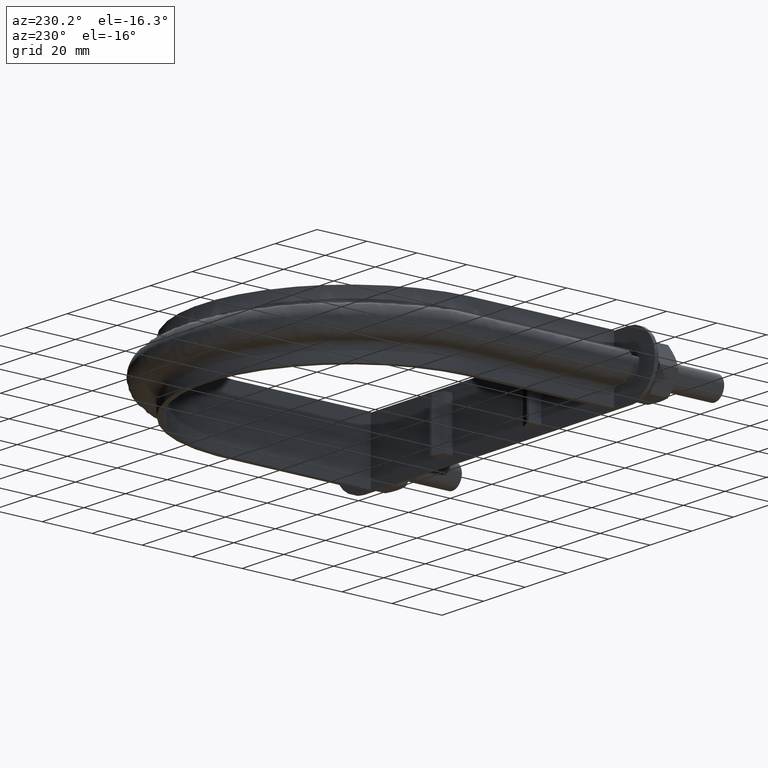
[diagram: clean part render]
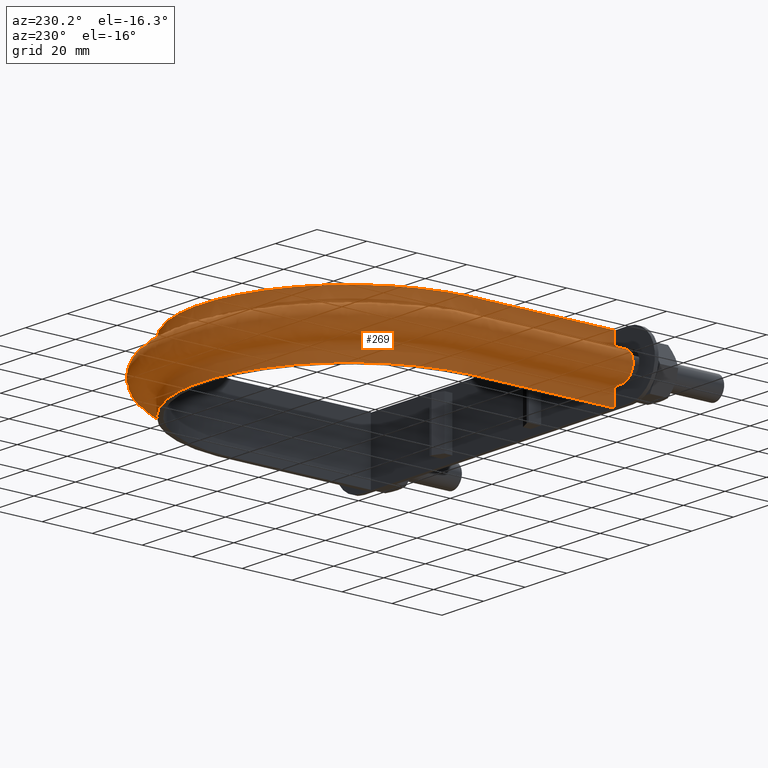
[diagram: same view with one face highlighted and labeled with its STEP entity id]
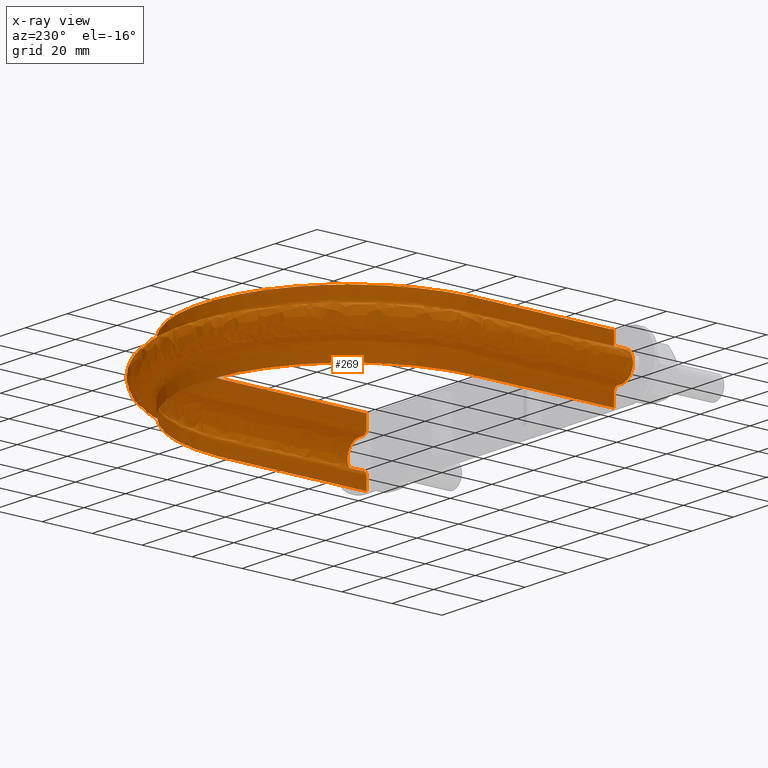
[diagram: x-ray of the same camera — body ghosted, the highlighted face saturated]
A machine part, auxiliary view. The second image highlights one B-rep face of the part: STEP entity #269.
The next image is the same camera in x-ray: the body ghosted, the highlighted face saturated — about 1% of this face is hidden behind the body in this view.
In plain terms, the highlighted face is a freeform B-spline surface patch.
Its self-contained STEP definition (entity closure, byte-faithful):
#269 = ADVANCED_FACE( '', ( #382 ), #383, .F. );
#382 = FACE_OUTER_BOUND( '', #630, .T. );
#383 = B_SPLINE_SURFACE_WITH_KNOTS( '', 3, 3, ( ( #631, #632, #633, #634, #635, #636, #637, #638, #639, #640, #641, #642, #643, #644, #645, #646 ), ( #647, #648, #649, #650, #651, #652, #653, #654, #655, #656, #657, #658, #659, #660, #661, #662 ), ( #663, #664, #665, #666, #667, #668, #669, #670, #671, #672, #673, #674, #675, #676, #677, #678 ), ( #679, #680, #681, #682, #683, #684, #685, #686, #687, #688, #689, #690, #691, #692, #693, #694 ), ( #695, #696, #697, #698, #699, #700, #701, #702, #703, #704, #705, #706, #707, #708, #709, #710 ), ( #711, #712, #713, #714, #715, #716, #717, #718, #719, #720, #721, #722, #723, #724, #725, #726 ), ( #727, #728, #729, #730, #731, #732, #733, #734, #735, #736, #737, #738, #739, #740, #741, #742 ), ( #743, #744, #745, #746, #747, #748, #749, #750, #751, #752, #753, #754, #755, #756, #757, #758 ), ( #759, #760, #761, #762, #763, #764, #765, #766, #767, #768, #769, #770, #771, #772, #773, #774 ), ( #775, #776, #777, #778, #779, #780, #781, #782, #783, #784, #785, #786, #787, #788, #789, #790 ), ( #791, #792, #793, #794, #795, #796, #797, #798, #799, #800, #801, #802, #803, #804, #805, #806 ), ( #807, #808, #809, #810, #811, #812, #813, #814, #815, #816, #817, #818, #819, #820, #821, #822 ), ( #823, #824, #825, #826, #827, #828, #829, #830, #831, #832, #833, #834, #835, #836, #837, #838 ), ( #839, #840, #841, #842, #843, #844, #845, #846, #847, #848, #849, #850, #851, #852, #853, #854 ), ( #855, #856, #857, #858, #859, #860, #861, #862, #863, #864, #865, #866, #867, #868, #869, #870 ), ( #871, #872, #873, #874, #875, #876, #877, #878, #879, #880, #881, #882, #883, #884, #885, #886 ), ( #887, #888, #889, #890, #891, #892, #893, #894, #895, #896, #897, #898, #899, #900, #901, #902 ), ( #903, #904, #905, #906, #907, #908, #909, #910, #911, #912, #913, #914, #915, #916, #917, #918 ), ( #919, #920, #921, #922, #923, #924, #925, #926, #927, #928, #929, #930, #931, #932, #933, #934 ), ( #935, #936, #937, #938, #939, #940, #941, #942, #943, #944, #945, #946, #947, #948, #949, #950 ), ( #951, #952, #953, #954, #955, #956, #957, #958, #959, #960, #961, #962, #963, #964, #965, #966 ), ( #967, #968, #969, #970, #971, #972, #973, #974, #975, #976, #977, #978, #979, #980, #981, #982 ), ( #983, #984, #985, #986, #987, #988, #989, #990, #991, #992, #993, #994, #995, #996, #997, #998 ), ( #999, #1000, #1001, #1002, #1003, #1004, #1005, #1006, #1007, #1008, #1009, #1010, #1011, #1012, #1013, #1014 ), ( #1015, #1016, #1017, #1018, #1019, #1020, #1021, #1022, #1023, #1024, #1025, #1026, #1027, #1028, #1029, #1030 ), ( #1031, #1032, #1033, #1034, #1035, #1036, #1037, #1038, #1039, #1040, #1041, #1042, #1043, #1044, #1045, #1046 ), ( #1047, #1048, #1049, #1050, #1051, #1052, #1053, #1054, #1055, #1056, #1057, #1058, #1059, #1060, #1061, #1062 ), ( #1063, #1064, #1065, #1066, #1067, #1068, #1069, #1070, #1071, #1072, #1073, #1074, #1075, #1076, #1077, #1078 ), ( #1079, #1080, #1081, #1082, #1083, #1084, #1085, #1086, #1087, #1088, #1089, #1090, #1091, #1092, #1093, #1094 ), ( #1095, #1096, #1097, #1098, #1099, #1100, #1101, #1102, #1103, #1104, #1105, #1106, #1107, #1108, #1109, #1110 ), ( #1111, #1112, #1113, #1114, #1115, #1116, #1117, #1118, #1119, #1120, #1121, #1122, #1123, #1124, #1125, #1126 ) ), .UNSPECIFIED., .F., .F., .F., ( 4, 3, 1, 1, 1, 3, 3, 1, 1, 1, 3, 3, 1, 1, 1, 3, 4 ), ( 4, 3, 1, 1, 1, 1, 1, 1, 3, 4 ), ( 0.105263157894737, 0.157894736842105, 0.210526315789474, 0.263157894736842, 0.315789473684211, 0.368421052631579, 0.421052631578947, 0.473684210526316, 0.526315789473684, 0.578947368421053, 0.631578947368421, 0.684210526315789, 0.736842105263158, 0.789473684210526, 0.842105263157895, 0.894736842105263, 0.947368421052632 ), ( 0.000000000000000, 1.00000000000000, 2.00000000000000, 3.00000000000000, 4.00000000000000, 5.00000000000000, 6.00000000000000, 7.00000000000000, 8.00000000000000, 9.00000000000000 ), .UNSPECIFIED. );
#630 = EDGE_LOOP( '', ( #1543, #1544, #1545, #1546 ) );
#631 = CARTESIAN_POINT( '', ( -59.4000000000000, 33.5100000000000, 12.5000000000000 ) );
#632 = CARTESIAN_POINT( '', ( -59.4000000000000, 53.5433333333334, 12.5000000000000 ) );
#633 = CARTESIAN_POINT( '', ( -59.4000000000000, 73.5766666666667, 12.5000000000000 ) );
#634 = CARTESIAN_POINT( '', ( -59.4000000000000, 93.6100000000000, 12.5000000000000 ) );
#635 = CARTESIAN_POINT( '', ( -59.4000000000000, 102.484817836499, 12.5000000000000 ) );
#636 = CARTESIAN_POINT( '', ( -55.3444933644878, 120.266836188810, 12.5000000000000 ) );
#637 = CARTESIAN_POINT( '', ( -38.2995777447149, 141.635011205915, 12.5000000000000 ) );
#638 = CARTESIAN_POINT( '', ( -13.6689610391051, 153.497859339137, 12.5000000000000 ) );
#639 = CARTESIAN_POINT( '', ( 13.6689610391052, 153.497859339137, 12.5000000000000 ) );
#640 = CARTESIAN_POINT( '', ( 38.2995777447150, 141.635011205915, 12.5000000000000 ) );
#641 = CARTESIAN_POINT( '', ( 55.3444933644878, 120.266836188810, 12.5000000000000 ) );
#642 = CARTESIAN_POINT( '', ( 59.4000000000000, 102.484817836499, 12.5000000000000 ) );
#643 = CARTESIAN_POINT( '', ( 59.4000000000000, 93.6100000000000, 12.5000000000000 ) );
#644 = CARTESIAN_POINT( '', ( 59.4000000000000, 73.5766666666666, 12.5000000000000 ) );
#645 = CARTESIAN_POINT( '', ( 59.4000000000000, 53.5433333333333, 12.5000000000000 ) );
#646 = CARTESIAN_POINT( '', ( 59.4000000000000, 33.5100000000000, 12.5000000000000 ) );
#647 = CARTESIAN_POINT( '', ( -59.4000000000000, 33.5100000000000, 10.8666666666667 ) );
#648 = CARTESIAN_POINT( '', ( -59.4000000000000, 53.5433333333334, 10.8666666666667 ) );
#649 = CARTESIAN_POINT( '', ( -59.4000000000000, 73.5766666666667, 10.8666666666667 ) );
#650 = CARTESIAN_POINT( '', ( -59.4000000000000, 93.6100000000000, 10.8666666666667 ) );
#651 = CARTESIAN_POINT( '', ( -59.4000000000000, 102.484817836499, 10.8666666666667 ) );
#652 = CARTESIAN_POINT( '', ( -55.3444933644878, 120.266836188810, 10.8666666666667 ) );
#653 = CARTESIAN_POINT( '', ( -38.2995777447149, 141.635011205915, 10.8666666666667 ) );
#654 = CARTESIAN_POINT( '', ( -13.6689610391051, 153.497859339137, 10.8666666666667 ) );
#655 = CARTESIAN_POINT( '', ( 13.6689610391052, 153.497859339137, 10.8666666666667 ) );
#656 = CARTESIAN_POINT( '', ( 38.2995777447150, 141.635011205915, 10.8666666666667 ) );
#657 = CARTESIAN_POINT( '', ( 55.3444933644878, 120.266836188810, 10.8666666666667 ) );
#658 = CARTESIAN_POINT( '', ( 59.4000000000000, 102.484817836499, 10.8666666666667 ) );
#659 = CARTESIAN_POINT( '', ( 59.4000000000000, 93.6100000000000, 10.8666666666667 ) );
#660 = CARTESIAN_POINT( '', ( 59.4000000000000, 73.5766666666666, 10.8666666666667 ) );
#661 = CARTESIAN_POINT( '', ( 59.4000000000000, 53.5433333333333, 10.8666666666667 ) );
#662 = CARTESIAN_POINT( '', ( 59.4000000000000, 33.5100000000000, 10.8666666666667 ) );
#663 = CARTESIAN_POINT( '', ( -59.4000000000000, 33.5100000000000, 9.23333333333334 ) );
#664 = CARTESIAN_POINT( '', ( -59.4000000000000, 53.5433333333334, 9.23333333333334 ) );
#665 = CARTESIAN_POINT( '', ( -59.4000000000000, 73.5766666666667, 9.23333333333334 ) );
#666 = CARTESIAN_POINT( '', ( -59.4000000000000, 93.6100000000000, 9.23333333333334 ) );
#667 = CARTESIAN_POINT( '', ( -59.4000000000000, 102.484817836499, 9.23333333333334 ) );
#668 = CARTESIAN_POINT( '', ( -55.3444933644878, 120.266836188810, 9.23333333333333 ) );
#669 = CARTESIAN_POINT( '', ( -38.2995777447149, 141.635011205915, 9.23333333333334 ) );
#670 = CARTESIAN_POINT( '', ( -13.6689610391051, 153.497859339138, 9.23333333333334 ) );
#671 = CARTESIAN_POINT( '', ( 13.6689610391052, 153.497859339137, 9.23333333333334 ) );
#672 = CARTESIAN_POINT( '', ( 38.2995777447150, 141.635011205915, 9.23333333333335 ) );
#673 = CARTESIAN_POINT( '', ( 55.3444933644878, 120.266836188810, 9.23333333333334 ) );
#674 = CARTESIAN_POINT( '', ( 59.4000000000000, 102.484817836499, 9.23333333333334 ) );
#675 = CARTESIAN_POINT( '', ( 59.4000000000000, 93.6100000000000, 9.23333333333334 ) );
#676 = CARTESIAN_POINT( '', ( 59.4000000000000, 73.5766666666666, 9.23333333333334 ) );
#677 = CARTESIAN_POINT( '', ( 59.4000000000000, 53.5433333333333, 9.23333333333334 ) );
#678 = CARTESIAN_POINT( '', ( 59.4000000000000, 33.5100000000000, 9.23333333333334 ) );
#679 = CARTESIAN_POINT( '', ( -59.4000000000000, 33.5100000000000, 7.60000000000001 ) );
#680 = CARTESIAN_POINT( '', ( -59.4000000000000, 53.5433333333334, 7.60000000000001 ) );
#681 = CARTESIAN_POINT( '', ( -59.4000000000000, 73.5766666666667, 7.60000000000001 ) );
#682 = CARTESIAN_POINT( '', ( -59.4000000000000, 93.6100000000000, 7.60000000000001 ) );
#683 = CARTESIAN_POINT( '', ( -59.4000000000000, 102.484817836499, 7.60000000000001 ) );
#684 = CARTESIAN_POINT( '', ( -55.3444933644878, 120.266836188810, 7.60000000000000 ) );
#685 = CARTESIAN_POINT( '', ( -38.2995777447149, 141.635011205915, 7.60000000000001 ) );
#686 = CARTESIAN_POINT( '', ( -13.6689610391051, 153.497859339137, 7.60000000000001 ) );
#687 = CARTESIAN_POINT( '', ( 13.6689610391052, 153.497859339138, 7.60000000000001 ) );
#688 = CARTESIAN_POINT( '', ( 38.2995777447150, 141.635011205915, 7.60000000000002 ) );
#689 = CARTESIAN_POINT( '', ( 55.3444933644878, 120.266836188810, 7.60000000000001 ) );
#690 = CARTESIAN_POINT( '', ( 59.4000000000000, 102.484817836499, 7.60000000000001 ) );
#691 = CARTESIAN_POINT( '', ( 59.4000000000000, 93.6100000000000, 7.60000000000001 ) );
#692 = CARTESIAN_POINT( '', ( 59.4000000000000, 73.5766666666666, 7.60000000000001 ) );
#693 = CARTESIAN_POINT( '', ( 59.4000000000000, 53.5433333333333, 7.60000000000001 ) );
#694 = CARTESIAN_POINT( '', ( 59.4000000000000, 33.5100000000000, 7.60000000000001 ) );
#695 = CARTESIAN_POINT( '', ( -59.4000000000000, 33.5100000000000, 7.33823584172335 ) );
#696 = CARTESIAN_POINT( '', ( -59.4000000000000, 53.5433333333334, 7.33823584172335 ) );
#697 = CARTESIAN_POINT( '', ( -59.4000000000000, 73.5766666666667, 7.33823584172335 ) );
#698 = CARTESIAN_POINT( '', ( -59.4000000000000, 93.6100000000000, 7.33823584172335 ) );
#699 = CARTESIAN_POINT( '', ( -59.4000000000000, 102.484817836499, 7.33823584172335 ) );
#700 = CARTESIAN_POINT( '', ( -55.3444933644878, 120.266836188810, 7.33823584172334 ) );
#701 = CARTESIAN_POINT( '', ( -38.2995777447149, 141.635011205915, 7.33823584172335 ) );
#702 = CARTESIAN_POINT( '', ( -13.6689610391051, 153.497859339138, 7.33823584172334 ) );
#703 = CARTESIAN_POINT( '', ( 13.6689610391052, 153.497859339137, 7.33823584172335 ) );
#704 = CARTESIAN_POINT( '', ( 38.2995777447150, 141.635011205915, 7.33823584172335 ) );
#705 = CARTESIAN_POINT( '', ( 55.3444933644878, 120.266836188810, 7.33823584172334 ) );
#706 = CARTESIAN_POINT( '', ( 59.4000000000000, 102.484817836499, 7.33823584172334 ) );
#707 = CARTESIAN_POINT( '', ( 59.4000000000000, 93.6100000000000, 7.33823584172334 ) );
#708 = CARTESIAN_POINT( '', ( 59.4000000000000, 73.5766666666666, 7.33823584172335 ) );
#709 = CARTESIAN_POINT( '', ( 59.4000000000000, 53.5433333333333, 7.33823584172334 ) );
#710 = CARTESIAN_POINT( '', ( 59.4000000000000, 33.5100000000000, 7.33823584172334 ) );
#711 = CARTESIAN_POINT( '', ( -59.5041362568359, 33.5100000000000, 6.81470752517002 ) );
#712 = CARTESIAN_POINT( '', ( -59.5041362568359, 53.5433333333334, 6.81470752517002 ) );
#713 = CARTESIAN_POINT( '', ( -59.5041362568359, 73.5766666666667, 6.81470752517002 ) );
#714 = CARTESIAN_POINT( '', ( -59.5041362568359, 93.6100000000000, 6.81470752517002 ) );
#715 = CARTESIAN_POINT( '', ( -59.5041362568359, 102.500663450545, 6.81470752517002 ) );
#716 = CARTESIAN_POINT( '', ( -55.4415197681150, 120.313436305670, 6.81470752517002 ) );
#717 = CARTESIAN_POINT( '', ( -38.3667220993400, 141.719240546797, 6.81470752517002 ) );
#718 = CARTESIAN_POINT( '', ( -13.6929245818231, 153.602843883112, 6.81470752517001 ) );
#719 = CARTESIAN_POINT( '', ( 13.6929245818232, 153.602843883112, 6.81470752517002 ) );
#720 = CARTESIAN_POINT( '', ( 38.3667220993401, 141.719240546797, 6.81470752517003 ) );
#721 = CARTESIAN_POINT( '', ( 55.4415197681150, 120.313436305670, 6.81470752517002 ) );
#722 = CARTESIAN_POINT( '', ( 59.5041362568359, 102.500663450545, 6.81470752517002 ) );
#723 = CARTESIAN_POINT( '', ( 59.5041362568359, 93.6100000000000, 6.81470752517002 ) );
#724 = CARTESIAN_POINT( '', ( 59.5041362568359, 73.5766666666666, 6.81470752517002 ) );
#725 = CARTESIAN_POINT( '', ( 59.5041362568359, 53.5433333333333, 6.81470752517002 ) );
#726 = CARTESIAN_POINT( '', ( 59.5041362568359, 33.5100000000000, 6.81470752517002 ) );
#727 = CARTESIAN_POINT( '', ( -59.9489687109389, 33.5100000000000, 6.14896871093889 ) );
#728 = CARTESIAN_POINT( '', ( -59.9489687109389, 53.5433333333334, 6.14896871093889 ) );
#729 = CARTESIAN_POINT( '', ( -59.9489687109389, 73.5766666666667, 6.14896871093889 ) );
#730 = CARTESIAN_POINT( '', ( -59.9489687109389, 93.6100000000000, 6.14896871093889 ) );
#731 = CARTESIAN_POINT( '', ( -59.9489687109389, 102.568350187109, 6.14896871093889 ) );
#732 = CARTESIAN_POINT( '', ( -55.8559814988290, 120.512495163498, 6.14896871093888 ) );
#733 = CARTESIAN_POINT( '', ( -38.6535385161630, 142.079037850355, 6.14896871093889 ) );
#734 = CARTESIAN_POINT( '', ( -13.7952881758309, 154.051299913300, 6.14896871093888 ) );
#735 = CARTESIAN_POINT( '', ( 13.7952881758310, 154.051299913300, 6.14896871093889 ) );
#736 = CARTESIAN_POINT( '', ( 38.6535385161631, 142.079037850355, 6.14896871093889 ) );
#737 = CARTESIAN_POINT( '', ( 55.8559814988290, 120.512495163498, 6.14896871093888 ) );
#738 = CARTESIAN_POINT( '', ( 59.9489687109389, 102.568350187109, 6.14896871093888 ) );
#739 = CARTESIAN_POINT( '', ( 59.9489687109389, 93.6100000000000, 6.14896871093888 ) );
#740 = CARTESIAN_POINT( '', ( 59.9489687109389, 73.5766666666666, 6.14896871093889 ) );
#741 = CARTESIAN_POINT( '', ( 59.9489687109389, 53.5433333333333, 6.14896871093888 ) );
#742 = CARTESIAN_POINT( '', ( 59.9489687109389, 33.5100000000000, 6.14896871093888 ) );
#743 = CARTESIAN_POINT( '', ( -60.6147075251700, 33.5100000000000, 5.70413625683592 ) );
#744 = CARTESIAN_POINT( '', ( -60.6147075251700, 53.5433333333334, 5.70413625683592 ) );
#745 = CARTESIAN_POINT( '', ( -60.6147075251700, 73.5766666666667, 5.70413625683592 ) );
#746 = CARTESIAN_POINT( '', ( -60.6147075251700, 93.6100000000000, 5.70413625683592 ) );
#747 = CARTESIAN_POINT( '', ( -60.6147075251700, 102.669650547107, 5.70413625683592 ) );
#748 = CARTESIAN_POINT( '', ( -56.4762673134198, 120.810407797233, 5.70413625683591 ) );
#749 = CARTESIAN_POINT( '', ( -39.0827896184075, 142.617512568251, 5.70413625683592 ) );
#750 = CARTESIAN_POINT( '', ( -13.9484861205101, 154.722461792381, 5.70413625683592 ) );
#751 = CARTESIAN_POINT( '', ( 13.9484861205102, 154.722461792381, 5.70413625683592 ) );
#752 = CARTESIAN_POINT( '', ( 39.0827896184075, 142.617512568251, 5.70413625683592 ) );
#753 = CARTESIAN_POINT( '', ( 56.4762673134199, 120.810407797233, 5.70413625683592 ) );
#754 = CARTESIAN_POINT( '', ( 60.6147075251700, 102.669650547107, 5.70413625683591 ) );
#755 = CARTESIAN_POINT( '', ( 60.6147075251700, 93.6100000000000, 5.70413625683591 ) );
#756 = CARTESIAN_POINT( '', ( 60.6147075251700, 73.5766666666666, 5.70413625683592 ) );
#757 = CARTESIAN_POINT( '', ( 60.6147075251700, 53.5433333333333, 5.70413625683591 ) );
#758 = CARTESIAN_POINT( '', ( 60.6147075251700, 33.5100000000000, 5.70413625683591 ) );
#759 = CARTESIAN_POINT( '', ( -61.1382358417233, 33.5100000000000, 5.60000000000001 ) );
#760 = CARTESIAN_POINT( '', ( -61.1382358417233, 53.5433333333334, 5.60000000000001 ) );
#761 = CARTESIAN_POINT( '', ( -61.1382358417233, 73.5766666666667, 5.60000000000001 ) );
#762 = CARTESIAN_POINT( '', ( -61.1382358417233, 93.6100000000000, 5.60000000000001 ) );
#763 = CARTESIAN_POINT( '', ( -61.1382358417233, 102.749311828382, 5.60000000000001 ) );
#764 = CARTESIAN_POINT( '', ( -56.9640519841540, 121.044682405060, 5.60000000000000 ) );
#765 = CARTESIAN_POINT( '', ( -39.4203470840875, 143.040962060065, 5.60000000000001 ) );
#766 = CARTESIAN_POINT( '', ( -14.0689589851875, 155.250254736369, 5.60000000000001 ) );
#767 = CARTESIAN_POINT( '', ( 14.0689589851876, 155.250254736369, 5.60000000000001 ) );
#768 = CARTESIAN_POINT( '', ( 39.4203470840876, 143.040962060065, 5.60000000000001 ) );
#769 = CARTESIAN_POINT( '', ( 56.9640519841540, 121.044682405060, 5.60000000000001 ) );
#770 = CARTESIAN_POINT( '', ( 61.1382358417234, 102.749311828382, 5.60000000000001 ) );
#771 = CARTESIAN_POINT( '', ( 61.1382358417234, 93.6100000000000, 5.60000000000001 ) );
#772 = CARTESIAN_POINT( '', ( 61.1382358417234, 73.5766666666666, 5.60000000000001 ) );
#773 = CARTESIAN_POINT( '', ( 61.1382358417234, 53.5433333333333, 5.60000000000001 ) );
#774 = CARTESIAN_POINT( '', ( 61.1382358417234, 33.5100000000000, 5.60000000000001 ) );
#775 = CARTESIAN_POINT( '', ( -61.4000000000000, 33.5100000000000, 5.60000000000001 ) );
#776 = CARTESIAN_POINT( '', ( -61.4000000000000, 53.5433333333334, 5.60000000000001 ) );
#777 = CARTESIAN_POINT( '', ( -61.4000000000000, 73.5766666666667, 5.60000000000001 ) );
#778 = CARTESIAN_POINT( '', ( -61.4000000000000, 93.6100000000000, 5.60000000000001 ) );
#779 = CARTESIAN_POINT( '', ( -61.4000000000000, 102.789142469019, 5.60000000000001 ) );
#780 = CARTESIAN_POINT( '', ( -57.2079443195210, 121.161819708974, 5.60000000000000 ) );
#781 = CARTESIAN_POINT( '', ( -39.5891258169275, 143.252686805971, 5.60000000000001 ) );
#782 = CARTESIAN_POINT( '', ( -14.1291954175262, 155.514151208362, 5.60000000000001 ) );
#783 = CARTESIAN_POINT( '', ( 14.1291954175263, 155.514151208363, 5.60000000000001 ) );
#784 = CARTESIAN_POINT( '', ( 39.5891258169276, 143.252686805971, 5.60000000000001 ) );
#785 = CARTESIAN_POINT( '', ( 57.2079443195211, 121.161819708974, 5.60000000000001 ) );
#786 = CARTESIAN_POINT( '', ( 61.4000000000000, 102.789142469019, 5.60000000000001 ) );
#787 = CARTESIAN_POINT( '', ( 61.4000000000000, 93.6100000000000, 5.60000000000001 ) );
#788 = CARTESIAN_POINT( '', ( 61.4000000000000, 73.5766666666666, 5.60000000000001 ) );
#789 = CARTESIAN_POINT( '', ( 61.4000000000000, 53.5433333333333, 5.60000000000001 ) );
#790 = CARTESIAN_POINT( '', ( 61.4000000000000, 33.5100000000000, 5.60000000000001 ) );
#791 = CARTESIAN_POINT( '', ( -61.9333333333333, 33.5100000000000, 5.60000000000000 ) );
#792 = CARTESIAN_POINT( '', ( -61.9333333333333, 53.5433333333334, 5.60000000000000 ) );
#793 = CARTESIAN_POINT( '', ( -61.9333333333333, 73.5766666666667, 5.60000000000000 ) );
#794 = CARTESIAN_POINT( '', ( -61.9333333333333, 93.6100000000000, 5.60000000000000 ) );
#795 = CARTESIAN_POINT( '', ( -61.9333333333333, 102.870295704358, 5.60000000000000 ) );
#796 = CARTESIAN_POINT( '', ( -57.7048645741966, 121.400481981018, 5.60000000000000 ) );
#797 = CARTESIAN_POINT( '', ( -39.9330053028509, 143.684066965987, 5.60000000000000 ) );
#798 = CARTESIAN_POINT( '', ( -14.2519245851051, 156.051829040156, 5.60000000000000 ) );
#799 = CARTESIAN_POINT( '', ( 14.2519245851052, 156.051829040156, 5.60000000000000 ) );
#800 = CARTESIAN_POINT( '', ( 39.9330053028510, 143.684066965987, 5.60000000000001 ) );
#801 = CARTESIAN_POINT( '', ( 57.7048645741966, 121.400481981018, 5.60000000000000 ) );
#802 = CARTESIAN_POINT( '', ( 61.9333333333334, 102.870295704358, 5.60000000000000 ) );
#803 = CARTESIAN_POINT( '', ( 61.9333333333334, 93.6100000000000, 5.60000000000000 ) );
#804 = CARTESIAN_POINT( '', ( 61.9333333333333, 73.5766666666666, 5.60000000000000 ) );
#805 = CARTESIAN_POINT( '', ( 61.9333333333333, 53.5433333333333, 5.60000000000000 ) );
#806 = CARTESIAN_POINT( '', ( 61.9333333333333, 33.5100000000000, 5.60000000000000 ) );
#807 = CARTESIAN_POINT( '', ( -62.4666666666667, 33.5100000000000, 5.60000000000000 ) );
#808 = CARTESIAN_POINT( '', ( -62.4666666666666, 53.5433333333334, 5.60000000000000 ) );
#809 = CARTESIAN_POINT( '', ( -62.4666666666666, 73.5766666666667, 5.60000000000000 ) );
#810 = CARTESIAN_POINT( '', ( -62.4666666666666, 93.6100000000000, 5.60000000000000 ) );
#811 = CARTESIAN_POINT( '', ( -62.4666666666666, 102.951448939696, 5.60000000000000 ) );
#812 = CARTESIAN_POINT( '', ( -58.2017848288721, 121.639144253061, 5.60000000000000 ) );
#813 = CARTESIAN_POINT( '', ( -40.2768847887742, 144.115447126002, 5.60000000000000 ) );
#814 = CARTESIAN_POINT( '', ( -14.3746537526841, 156.589506871949, 5.60000000000000 ) );
#815 = CARTESIAN_POINT( '', ( 14.3746537526842, 156.589506871949, 5.60000000000000 ) );
#816 = CARTESIAN_POINT( '', ( 40.2768847887743, 144.115447126002, 5.60000000000001 ) );
#817 = CARTESIAN_POINT( '', ( 58.2017848288721, 121.639144253061, 5.60000000000000 ) );
#818 = CARTESIAN_POINT( '', ( 62.4666666666667, 102.951448939696, 5.60000000000000 ) );
#819 = CARTESIAN_POINT( '', ( 62.4666666666667, 93.6100000000000, 5.60000000000000 ) );
#820 = CARTESIAN_POINT( '', ( 62.4666666666667, 73.5766666666666, 5.60000000000000 ) );
#821 = CARTESIAN_POINT( '', ( 62.4666666666667, 53.5433333333333, 5.60000000000000 ) );
#822 = CARTESIAN_POINT( '', ( 62.4666666666667, 33.5100000000000, 5.60000000000000 ) );
#823 = CARTESIAN_POINT( '', ( -63.0000000000000, 33.5100000000000, 5.60000000000000 ) );
#824 = CARTESIAN_POINT( '', ( -63.0000000000000, 53.5433333333334, 5.60000000000000 ) );
#825 = CARTESIAN_POINT( '', ( -63.0000000000000, 73.5766666666667, 5.60000000000000 ) );
#826 = CARTESIAN_POINT( '', ( -63.0000000000000, 93.6100000000000, 5.60000000000000 ) );
#827 = CARTESIAN_POINT( '', ( -63.0000000000000, 103.032602175035, 5.60000000000000 ) );
#828 = CARTESIAN_POINT( '', ( -58.6987050835476, 121.877806525105, 5.60000000000000 ) );
#829 = CARTESIAN_POINT( '', ( -40.6207642746976, 144.546827286017, 5.60000000000000 ) );
#830 = CARTESIAN_POINT( '', ( -14.4973829202630, 157.127184703742, 5.60000000000000 ) );
#831 = CARTESIAN_POINT( '', ( 14.4973829202631, 157.127184703743, 5.60000000000000 ) );
#832 = CARTESIAN_POINT( '', ( 40.6207642746977, 144.546827286017, 5.60000000000001 ) );
#833 = CARTESIAN_POINT( '', ( 58.6987050835477, 121.877806525105, 5.60000000000000 ) );
#834 = CARTESIAN_POINT( '', ( 63.0000000000000, 103.032602175035, 5.60000000000000 ) );
#835 = CARTESIAN_POINT( '', ( 63.0000000000000, 93.6100000000000, 5.60000000000000 ) );
#836 = CARTESIAN_POINT( '', ( 63.0000000000000, 73.5766666666666, 5.60000000000000 ) );
#837 = CARTESIAN_POINT( '', ( 63.0000000000000, 53.5433333333333, 5.60000000000000 ) );
#838 = CARTESIAN_POINT( '', ( 63.0000000000000, 33.5100000000000, 5.60000000000000 ) );
#839 = CARTESIAN_POINT( '', ( -64.4627416997970, 33.5100000000000, 5.60000000000001 ) );
#840 = CARTESIAN_POINT( '', ( -64.4627416997970, 53.5433333333334, 5.60000000000001 ) );
#841 = CARTESIAN_POINT( '', ( -64.4627416997969, 73.5766666666667, 5.60000000000001 ) );
#842 = CARTESIAN_POINT( '', ( -64.4627416997969, 93.6100000000000, 5.60000000000001 ) );
#843 = CARTESIAN_POINT( '', ( -64.4627416997969, 103.255176340166, 5.60000000000001 ) );
#844 = CARTESIAN_POINT( '', ( -60.0615787922744, 122.532371382892, 5.60000000000000 ) );
#845 = CARTESIAN_POINT( '', ( -41.5639021442567, 145.729948064491, 5.60000000000001 ) );
#846 = CARTESIAN_POINT( '', ( -14.8339849287613, 158.601841801781, 5.60000000000001 ) );
#847 = CARTESIAN_POINT( '', ( 14.8339849287614, 158.601841801781, 5.60000000000001 ) );
#848 = CARTESIAN_POINT( '', ( 41.5639021442568, 145.729948064491, 5.60000000000001 ) );
#849 = CARTESIAN_POINT( '', ( 60.0615787922745, 122.532371382892, 5.60000000000001 ) );
#850 = CARTESIAN_POINT( '', ( 64.4627416997970, 103.255176340166, 5.60000000000001 ) );
#851 = CARTESIAN_POINT( '', ( 64.4627416997970, 93.6100000000000, 5.60000000000001 ) );
#852 = CARTESIAN_POINT( '', ( 64.4627416997970, 73.5766666666666, 5.60000000000001 ) );
#853 = CARTESIAN_POINT( '', ( 64.4627416997970, 53.5433333333333, 5.60000000000001 ) );
#854 = CARTESIAN_POINT( '', ( 64.4627416997970, 33.5100000000000, 5.60000000000001 ) );
#855 = CARTESIAN_POINT( '', ( -67.3882250993909, 33.5100000000000, 4.38822509939086 ) );
#856 = CARTESIAN_POINT( '', ( -67.3882250993909, 53.5433333333334, 4.38822509939086 ) );
#857 = CARTESIAN_POINT( '', ( -67.3882250993908, 73.5766666666667, 4.38822509939086 ) );
#858 = CARTESIAN_POINT( '', ( -67.3882250993908, 93.6100000000000, 4.38822509939086 ) );
#859 = CARTESIAN_POINT( '', ( -67.3882250993908, 103.700324670429, 4.38822509939086 ) );
#860 = CARTESIAN_POINT( '', ( -62.7873262097280, 123.841501098467, 4.38822509939086 ) );
#861 = CARTESIAN_POINT( '', ( -43.4501778833749, 148.096189621438, 4.38822509939086 ) );
#862 = CARTESIAN_POINT( '', ( -15.5071889457579, 161.551155997858, 4.38822509939086 ) );
#863 = CARTESIAN_POINT( '', ( 15.5071889457580, 161.551155997858, 4.38822509939086 ) );
#864 = CARTESIAN_POINT( '', ( 43.4501778833750, 148.096189621438, 4.38822509939087 ) );
#865 = CARTESIAN_POINT( '', ( 62.7873262097281, 123.841501098467, 4.38822509939086 ) );
#866 = CARTESIAN_POINT( '', ( 67.3882250993909, 103.700324670429, 4.38822509939086 ) );
#867 = CARTESIAN_POINT( '', ( 67.3882250993909, 93.6100000000000, 4.38822509939086 ) );
#868 = CARTESIAN_POINT( '', ( 67.3882250993909, 73.5766666666666, 4.38822509939086 ) );
#869 = CARTESIAN_POINT( '', ( 67.3882250993909, 53.5433333333333, 4.38822509939086 ) );
#870 = CARTESIAN_POINT( '', ( 67.3882250993909, 33.5100000000000, 4.38822509939086 ) );
#871 = CARTESIAN_POINT( '', ( -69.2058874503046, 33.5100000000000, 1.38308419891421E-015 ) );
#872 = CARTESIAN_POINT( '', ( -69.2058874503046, 53.5433333333334, 1.38308419891421E-015 ) );
#873 = CARTESIAN_POINT( '', ( -69.2058874503045, 73.5766666666667, 1.38308419891421E-015 ) );
#874 = CARTESIAN_POINT( '', ( -69.2058874503045, 93.6100000000000, 1.38308419891421E-015 ) );
#875 = CARTESIAN_POINT( '', ( -69.2058874503045, 103.976904383923, 1.38308419891421E-015 ) );
#876 = CARTESIAN_POINT( '', ( -64.4808885315971, 124.654890023112, 1.38308419891421E-015 ) );
#877 = CARTESIAN_POINT( '', ( -44.6221593736520, 149.566383638545, 1.38308419891421E-015 ) );
#878 = CARTESIAN_POINT( '', ( -15.9254642968840, 163.383624907430, 1.38308419891421E-015 ) );
#879 = CARTESIAN_POINT( '', ( 15.9254642968841, 163.383624907430, 1.38308419891421E-015 ) );
#880 = CARTESIAN_POINT( '', ( 44.6221593736521, 149.566383638545, 1.38308419891421E-015 ) );
#881 = CARTESIAN_POINT( '', ( 64.4808885315971, 124.654890023112, 1.38308419891421E-015 ) );
#882 = CARTESIAN_POINT( '', ( 69.2058874503046, 103.976904383923, 1.38308419891421E-015 ) );
#883 = CARTESIAN_POINT( '', ( 69.2058874503046, 93.6100000000000, 1.38308419891421E-015 ) );
#884 = CARTESIAN_POINT( '', ( 69.2058874503046, 73.5766666666666, 1.38308419891421E-015 ) );
#885 = CARTESIAN_POINT( '', ( 69.2058874503046, 53.5433333333333, 1.38308419891421E-015 ) );
#886 = CARTESIAN_POINT( '', ( 69.2058874503046, 33.5100000000000, 1.38308419891421E-015 ) );
#887 = CARTESIAN_POINT( '', ( -67.3882250993909, 33.5100000000000, -4.38822509939086 ) );
#888 = CARTESIAN_POINT( '', ( -67.3882250993909, 53.5433333333334, -4.38822509939086 ) );
#889 = CARTESIAN_POINT( '', ( -67.3882250993908, 73.5766666666667, -4.38822509939086 ) );
#890 = CARTESIAN_POINT( '', ( -67.3882250993908, 93.6100000000000, -4.38822509939086 ) );
#891 = CARTESIAN_POINT( '', ( -67.3882250993908, 103.700324670429, -4.38822509939086 ) );
#892 = CARTESIAN_POINT( '', ( -62.7873262097280, 123.841501098467, -4.38822509939086 ) );
#893 = CARTESIAN_POINT( '', ( -43.4501778833749, 148.096189621438, -4.38822509939086 ) );
#894 = CARTESIAN_POINT( '', ( -15.5071889457579, 161.551155997858, -4.38822509939086 ) );
#895 = CARTESIAN_POINT( '', ( 15.5071889457580, 161.551155997858, -4.38822509939086 ) );
#896 = CARTESIAN_POINT( '', ( 43.4501778833750, 148.096189621438, -4.38822509939087 ) );
#897 = CARTESIAN_POINT( '', ( 62.7873262097281, 123.841501098467, -4.38822509939086 ) );
#898 = CARTESIAN_POINT( '', ( 67.3882250993909, 103.700324670429, -4.38822509939086 ) );
#899 = CARTESIAN_POINT( '', ( 67.3882250993909, 93.6100000000000, -4.38822509939086 ) );
#900 = CARTESIAN_POINT( '', ( 67.3882250993909, 73.5766666666666, -4.38822509939086 ) );
#901 = CARTESIAN_POINT( '', ( 67.3882250993909, 53.5433333333333, -4.38822509939086 ) );
#902 = CARTESIAN_POINT( '', ( 67.3882250993909, 33.5100000000000, -4.38822509939086 ) );
#903 = CARTESIAN_POINT( '', ( -64.4627416997970, 33.5100000000000, -5.60000000000001 ) );
#904 = CARTESIAN_POINT( '', ( -64.4627416997970, 53.5433333333334, -5.60000000000001 ) );
#905 = CARTESIAN_POINT( '', ( -64.4627416997969, 73.5766666666667, -5.60000000000001 ) );
#906 = CARTESIAN_POINT( '', ( -64.4627416997969, 93.6100000000000, -5.60000000000001 ) );
#907 = CARTESIAN_POINT( '', ( -64.4627416997969, 103.255176340166, -5.60000000000001 ) );
#908 = CARTESIAN_POINT( '', ( -60.0615787922744, 122.532371382892, -5.60000000000000 ) );
#909 = CARTESIAN_POINT( '', ( -41.5639021442567, 145.729948064491, -5.60000000000001 ) );
#910 = CARTESIAN_POINT( '', ( -14.8339849287613, 158.601841801781, -5.60000000000000 ) );
#911 = CARTESIAN_POINT( '', ( 14.8339849287614, 158.601841801781, -5.60000000000001 ) );
#912 = CARTESIAN_POINT( '', ( 41.5639021442568, 145.729948064491, -5.60000000000001 ) );
#913 = CARTESIAN_POINT( '', ( 60.0615787922745, 122.532371382892, -5.60000000000000 ) );
#914 = CARTESIAN_POINT( '', ( 64.4627416997970, 103.255176340166, -5.60000000000000 ) );
#915 = CARTESIAN_POINT( '', ( 64.4627416997970, 93.6100000000000, -5.60000000000000 ) );
#916 = CARTESIAN_POINT( '', ( 64.4627416997970, 73.5766666666666, -5.60000000000001 ) );
#917 = CARTESIAN_POINT( '', ( 64.4627416997970, 53.5433333333333, -5.60000000000000 ) );
#918 = CARTESIAN_POINT( '', ( 64.4627416997970, 33.5100000000000, -5.60000000000000 ) );
#919 = CARTESIAN_POINT( '', ( -63.0000000000000, 33.5100000000000, -5.60000000000001 ) );
#920 = CARTESIAN_POINT( '', ( -63.0000000000000, 53.5433333333334, -5.60000000000001 ) );
#921 = CARTESIAN_POINT( '', ( -63.0000000000000, 73.5766666666667, -5.60000000000001 ) );
#922 = CARTESIAN_POINT( '', ( -63.0000000000000, 93.6100000000000, -5.60000000000001 ) );
#923 = CARTESIAN_POINT( '', ( -63.0000000000000, 103.032602175035, -5.60000000000001 ) );
#924 = CARTESIAN_POINT( '', ( -58.6987050835476, 121.877806525105, -5.60000000000000 ) );
#925 = CARTESIAN_POINT( '', ( -40.6207642746976, 144.546827286017, -5.60000000000001 ) );
#926 = CARTESIAN_POINT( '', ( -14.4973829202630, 157.127184703742, -5.60000000000000 ) );
#927 = CARTESIAN_POINT( '', ( 14.4973829202631, 157.127184703743, -5.60000000000001 ) );
#928 = CARTESIAN_POINT( '', ( 40.6207642746977, 144.546827286017, -5.60000000000001 ) );
#929 = CARTESIAN_POINT( '', ( 58.6987050835477, 121.877806525105, -5.60000000000000 ) );
#930 = CARTESIAN_POINT( '', ( 63.0000000000000, 103.032602175035, -5.60000000000000 ) );
#931 = CARTESIAN_POINT( '', ( 63.0000000000000, 93.6100000000000, -5.60000000000000 ) );
#932 = CARTESIAN_POINT( '', ( 63.0000000000000, 73.5766666666666, -5.60000000000001 ) );
#933 = CARTESIAN_POINT( '', ( 63.0000000000000, 53.5433333333333, -5.60000000000000 ) );
#934 = CARTESIAN_POINT( '', ( 63.0000000000000, 33.5100000000000, -5.60000000000000 ) );
#935 = CARTESIAN_POINT( '', ( -62.4666666666667, 33.5100000000000, -5.60000000000000 ) );
#936 = CARTESIAN_POINT( '', ( -62.4666666666666, 53.5433333333334, -5.60000000000000 ) );
#937 = CARTESIAN_POINT( '', ( -62.4666666666666, 73.5766666666667, -5.60000000000000 ) );
#938 = CARTESIAN_POINT( '', ( -62.4666666666666, 93.6100000000000, -5.60000000000000 ) );
#939 = CARTESIAN_POINT( '', ( -62.4666666666666, 102.951448939696, -5.60000000000000 ) );
#940 = CARTESIAN_POINT( '', ( -58.2017848288721, 121.639144253061, -5.59999999999999 ) );
#941 = CARTESIAN_POINT( '', ( -40.2768847887743, 144.115447126002, -5.60000000000000 ) );
#942 = CARTESIAN_POINT( '', ( -14.3746537526841, 156.589506871949, -5.60000000000000 ) );
#943 = CARTESIAN_POINT( '', ( 14.3746537526842, 156.589506871949, -5.60000000000000 ) );
#944 = CARTESIAN_POINT( '', ( 40.2768847887743, 144.115447126002, -5.60000000000000 ) );
#945 = CARTESIAN_POINT( '', ( 58.2017848288721, 121.639144253061, -5.60000000000000 ) );
#946 = CARTESIAN_POINT( '', ( 62.4666666666667, 102.951448939696, -5.59999999999999 ) );
#947 = CARTESIAN_POINT( '', ( 62.4666666666667, 93.6100000000000, -5.59999999999999 ) );
#948 = CARTESIAN_POINT( '', ( 62.4666666666667, 73.5766666666666, -5.60000000000000 ) );
#949 = CARTESIAN_POINT( '', ( 62.4666666666667, 53.5433333333333, -5.59999999999999 ) );
#950 = CARTESIAN_POINT( '', ( 62.4666666666667, 33.5100000000000, -5.59999999999999 ) );
#951 = CARTESIAN_POINT( '', ( -61.9333333333333, 33.5100000000000, -5.60000000000000 ) );
#952 = CARTESIAN_POINT( '', ( -61.9333333333333, 53.5433333333334, -5.60000000000000 ) );
#953 = CARTESIAN_POINT( '', ( -61.9333333333333, 73.5766666666667, -5.60000000000000 ) );
#954 = CARTESIAN_POINT( '', ( -61.9333333333333, 93.6100000000000, -5.60000000000000 ) );
#955 = CARTESIAN_POINT( '', ( -61.9333333333333, 102.870295704358, -5.60000000000000 ) );
#956 = CARTESIAN_POINT( '', ( -57.7048645741966, 121.400481981018, -5.59999999999999 ) );
#957 = CARTESIAN_POINT( '', ( -39.9330053028509, 143.684066965987, -5.60000000000000 ) );
#958 = CARTESIAN_POINT( '', ( -14.2519245851051, 156.051829040156, -5.59999999999999 ) );
#959 = CARTESIAN_POINT( '', ( 14.2519245851052, 156.051829040156, -5.60000000000000 ) );
#960 = CARTESIAN_POINT( '', ( 39.9330053028510, 143.684066965987, -5.60000000000000 ) );
#961 = CARTESIAN_POINT( '', ( 57.7048645741966, 121.400481981018, -5.59999999999999 ) );
#962 = CARTESIAN_POINT( '', ( 61.9333333333333, 102.870295704358, -5.59999999999999 ) );
#963 = CARTESIAN_POINT( '', ( 61.9333333333333, 93.6100000000000, -5.59999999999999 ) );
#964 = CARTESIAN_POINT( '', ( 61.9333333333333, 73.5766666666666, -5.60000000000000 ) );
#965 = CARTESIAN_POINT( '', ( 61.9333333333333, 53.5433333333333, -5.59999999999999 ) );
#966 = CARTESIAN_POINT( '', ( 61.9333333333333, 33.5100000000000, -5.59999999999999 ) );
#967 = CARTESIAN_POINT( '', ( -61.4000000000000, 33.5100000000000, -5.60000000000000 ) );
#968 = CARTESIAN_POINT( '', ( -61.4000000000000, 53.5433333333334, -5.60000000000000 ) );
#969 = CARTESIAN_POINT( '', ( -61.4000000000000, 73.5766666666667, -5.60000000000000 ) );
#970 = CARTESIAN_POINT( '', ( -61.4000000000000, 93.6100000000000, -5.60000000000000 ) );
#971 = CARTESIAN_POINT( '', ( -61.4000000000000, 102.789142469019, -5.60000000000000 ) );
#972 = CARTESIAN_POINT( '', ( -57.2079443195210, 121.161819708974, -5.59999999999999 ) );
#973 = CARTESIAN_POINT( '', ( -39.5891258169275, 143.252686805971, -5.60000000000000 ) );
#974 = CARTESIAN_POINT( '', ( -14.1291954175262, 155.514151208362, -5.59999999999999 ) );
#975 = CARTESIAN_POINT( '', ( 14.1291954175263, 155.514151208363, -5.60000000000000 ) );
#976 = CARTESIAN_POINT( '', ( 39.5891258169276, 143.252686805971, -5.60000000000000 ) );
#977 = CARTESIAN_POINT( '', ( 57.2079443195210, 121.161819708974, -5.59999999999999 ) );
#978 = CARTESIAN_POINT( '', ( 61.4000000000000, 102.789142469019, -5.59999999999999 ) );
#979 = CARTESIAN_POINT( '', ( 61.4000000000000, 93.6100000000000, -5.59999999999999 ) );
#980 = CARTESIAN_POINT( '', ( 61.4000000000000, 73.5766666666666, -5.60000000000000 ) );
#981 = CARTESIAN_POINT( '', ( 61.4000000000000, 53.5433333333333, -5.59999999999999 ) );
#982 = CARTESIAN_POINT( '', ( 61.4000000000000, 33.5100000000000, -5.59999999999999 ) );
#983 = CARTESIAN_POINT( '', ( -61.1382358417233, 33.5100000000000, -5.60000000000000 ) );
#984 = CARTESIAN_POINT( '', ( -61.1382358417233, 53.5433333333334, -5.60000000000000 ) );
#985 = CARTESIAN_POINT( '', ( -61.1382358417233, 73.5766666666667, -5.60000000000000 ) );
#986 = CARTESIAN_POINT( '', ( -61.1382358417233, 93.6100000000000, -5.60000000000000 ) );
#987 = CARTESIAN_POINT( '', ( -61.1382358417233, 102.749311828382, -5.60000000000000 ) );
#988 = CARTESIAN_POINT( '', ( -56.9640519841540, 121.044682405060, -5.59999999999999 ) );
#989 = CARTESIAN_POINT( '', ( -39.4203470840875, 143.040962060065, -5.60000000000000 ) );
#990 = CARTESIAN_POINT( '', ( -14.0689589851875, 155.250254736369, -5.59999999999999 ) );
#991 = CARTESIAN_POINT( '', ( 14.0689589851876, 155.250254736369, -5.60000000000000 ) );
#992 = CARTESIAN_POINT( '', ( 39.4203470840876, 143.040962060065, -5.60000000000000 ) );
#993 = CARTESIAN_POINT( '', ( 56.9640519841540, 121.044682405060, -5.59999999999999 ) );
#994 = CARTESIAN_POINT( '', ( 61.1382358417233, 102.749311828382, -5.59999999999999 ) );
#995 = CARTESIAN_POINT( '', ( 61.1382358417233, 93.6100000000000, -5.59999999999999 ) );
#996 = CARTESIAN_POINT( '', ( 61.1382358417233, 73.5766666666666, -5.60000000000000 ) );
#997 = CARTESIAN_POINT( '', ( 61.1382358417233, 53.5433333333333, -5.59999999999999 ) );
#998 = CARTESIAN_POINT( '', ( 61.1382358417233, 33.5100000000000, -5.59999999999999 ) );
#999 = CARTESIAN_POINT( '', ( -60.6147075251700, 33.5100000000000, -5.70413625683591 ) );
#1000 = CARTESIAN_POINT( '', ( -60.6147075251700, 53.5433333333334, -5.70413625683591 ) );
#1001 = CARTESIAN_POINT( '', ( -60.6147075251700, 73.5766666666667, -5.70413625683591 ) );
#1002 = CARTESIAN_POINT( '', ( -60.6147075251700, 93.6100000000000, -5.70413625683591 ) );
#1003 = CARTESIAN_POINT( '', ( -60.6147075251700, 102.669650547107, -5.70413625683591 ) );
#1004 = CARTESIAN_POINT( '', ( -56.4762673134198, 120.810407797233, -5.70413625683590 ) );
#1005 = CARTESIAN_POINT( '', ( -39.0827896184075, 142.617512568251, -5.70413625683591 ) );
#1006 = CARTESIAN_POINT( '', ( -13.9484861205101, 154.722461792381, -5.70413625683590 ) );
#1007 = CARTESIAN_POINT( '', ( 13.9484861205102, 154.722461792381, -5.70413625683591 ) );
#1008 = CARTESIAN_POINT( '', ( 39.0827896184075, 142.617512568251, -5.70413625683591 ) );
#1009 = CARTESIAN_POINT( '', ( 56.4762673134199, 120.810407797233, -5.70413625683590 ) );
#1010 = CARTESIAN_POINT( '', ( 60.6147075251700, 102.669650547107, -5.70413625683590 ) );
#1011 = CARTESIAN_POINT( '', ( 60.6147075251700, 93.6100000000000, -5.70413625683590 ) );
#1012 = CARTESIAN_POINT( '', ( 60.6147075251700, 73.5766666666666, -5.70413625683591 ) );
#1013 = CARTESIAN_POINT( '', ( 60.6147075251700, 53.5433333333333, -5.70413625683590 ) );
#1014 = CARTESIAN_POINT( '', ( 60.6147075251700, 33.5100000000000, -5.70413625683590 ) );
#1015 = CARTESIAN_POINT( '', ( -59.9489687109389, 33.5100000000000, -6.14896871093887 ) );
#1016 = CARTESIAN_POINT( '', ( -59.9489687109388, 53.5433333333334, -6.14896871093887 ) );
#1017 = CARTESIAN_POINT( '', ( -59.9489687109389, 73.5766666666667, -6.14896871093887 ) );
#1018 = CARTESIAN_POINT( '', ( -59.9489687109388, 93.6100000000000, -6.14896871093887 ) );
#1019 = CARTESIAN_POINT( '', ( -59.9489687109388, 102.568350187109, -6.14896871093887 ) );
#1020 = CARTESIAN_POINT( '', ( -55.8559814988290, 120.512495163498, -6.14896871093887 ) );
#1021 = CARTESIAN_POINT( '', ( -38.6535385161630, 142.079037850355, -6.14896871093888 ) );
#1022 = CARTESIAN_POINT( '', ( -13.7952881758309, 154.051299913300, -6.14896871093887 ) );
#1023 = CARTESIAN_POINT( '', ( 13.7952881758310, 154.051299913300, -6.14896871093887 ) );
#1024 = CARTESIAN_POINT( '', ( 38.6535385161631, 142.079037850355, -6.14896871093888 ) );
#1025 = CARTESIAN_POINT( '', ( 55.8559814988290, 120.512495163498, -6.14896871093887 ) );
#1026 = CARTESIAN_POINT( '', ( 59.9489687109389, 102.568350187109, -6.14896871093887 ) );
#1027 = CARTESIAN_POINT( '', ( 59.9489687109389, 93.6100000000000, -6.14896871093887 ) );
#1028 = CARTESIAN_POINT( '', ( 59.9489687109389, 73.5766666666666, -6.14896871093887 ) );
#1029 = CARTESIAN_POINT( '', ( 59.9489687109389, 53.5433333333333, -6.14896871093887 ) );
#1030 = CARTESIAN_POINT( '', ( 59.9489687109389, 33.5100000000000, -6.14896871093887 ) );
#1031 = CARTESIAN_POINT( '', ( -59.5041362568359, 33.5100000000000, -6.81470752517001 ) );
#1032 = CARTESIAN_POINT( '', ( -59.5041362568359, 53.5433333333334, -6.81470752517001 ) );
#1033 = CARTESIAN_POINT( '', ( -59.5041362568359, 73.5766666666667, -6.81470752517001 ) );
#1034 = CARTESIAN_POINT( '', ( -59.5041362568359, 93.6100000000000, -6.81470752517001 ) );
#1035 = CARTESIAN_POINT( '', ( -59.5041362568359, 102.500663450545, -6.81470752517001 ) );
#1036 = CARTESIAN_POINT( '', ( -55.4415197681150, 120.313436305670, -6.81470752517000 ) );
#1037 = CARTESIAN_POINT( '', ( -38.3667220993400, 141.719240546797, -6.81470752517001 ) );
#1038 = CARTESIAN_POINT( '', ( -13.6929245818231, 153.602843883112, -6.81470752517001 ) );
#1039 = CARTESIAN_POINT( '', ( 13.6929245818232, 153.602843883112, -6.81470752517001 ) );
#1040 = CARTESIAN_POINT( '', ( 38.3667220993401, 141.719240546797, -6.81470752517001 ) );
#1041 = CARTESIAN_POINT( '', ( 55.4415197681150, 120.313436305670, -6.81470752517001 ) );
#1042 = CARTESIAN_POINT( '', ( 59.5041362568359, 102.500663450545, -6.81470752517001 ) );
#1043 = CARTESIAN_POINT( '', ( 59.5041362568359, 93.6100000000000, -6.81470752517001 ) );
#1044 = CARTESIAN_POINT( '', ( 59.5041362568359, 73.5766666666666, -6.81470752517001 ) );
#1045 = CARTESIAN_POINT( '', ( 59.5041362568359, 53.5433333333333, -6.81470752517001 ) );
#1046 = CARTESIAN_POINT( '', ( 59.5041362568359, 33.5100000000000, -6.81470752517001 ) );
#1047 = CARTESIAN_POINT( '', ( -59.4000000000000, 33.5100000000000, -7.33823584172333 ) );
#1048 = CARTESIAN_POINT( '', ( -59.4000000000000, 53.5433333333334, -7.33823584172333 ) );
#1049 = CARTESIAN_POINT( '', ( -59.4000000000000, 73.5766666666667, -7.33823584172333 ) );
#1050 = CARTESIAN_POINT( '', ( -59.4000000000000, 93.6100000000000, -7.33823584172333 ) );
#1051 = CARTESIAN_POINT( '', ( -59.4000000000000, 102.484817836499, -7.33823584172333 ) );
#1052 = CARTESIAN_POINT( '', ( -55.3444933644877, 120.266836188810, -7.33823584172333 ) );
#1053 = CARTESIAN_POINT( '', ( -38.2995777447149, 141.635011205915, -7.33823584172334 ) );
#1054 = CARTESIAN_POINT( '', ( -13.6689610391051, 153.497859339137, -7.33823584172333 ) );
#1055 = CARTESIAN_POINT( '', ( 13.6689610391052, 153.497859339137, -7.33823584172333 ) );
#1056 = CARTESIAN_POINT( '', ( 38.2995777447150, 141.635011205915, -7.33823584172334 ) );
#1057 = CARTESIAN_POINT( '', ( 55.3444933644878, 120.266836188810, -7.33823584172333 ) );
#1058 = CARTESIAN_POINT( '', ( 59.4000000000000, 102.484817836499, -7.33823584172333 ) );
#1059 = CARTESIAN_POINT( '', ( 59.4000000000000, 93.6100000000000, -7.33823584172333 ) );
#1060 = CARTESIAN_POINT( '', ( 59.4000000000000, 73.5766666666666, -7.33823584172333 ) );
#1061 = CARTESIAN_POINT( '', ( 59.4000000000000, 53.5433333333333, -7.33823584172333 ) );
#1062 = CARTESIAN_POINT( '', ( 59.4000000000000, 33.5100000000000, -7.33823584172333 ) );
#1063 = CARTESIAN_POINT( '', ( -59.4000000000000, 33.5100000000000, -7.60000000000000 ) );
#1064 = CARTESIAN_POINT( '', ( -59.4000000000000, 53.5433333333334, -7.60000000000000 ) );
#1065 = CARTESIAN_POINT( '', ( -59.4000000000000, 73.5766666666667, -7.60000000000000 ) );
#1066 = CARTESIAN_POINT( '', ( -59.4000000000000, 93.6100000000000, -7.60000000000000 ) );
#1067 = CARTESIAN_POINT( '', ( -59.4000000000000, 102.484817836499, -7.60000000000000 ) );
#1068 = CARTESIAN_POINT( '', ( -55.3444933644877, 120.266836188810, -7.59999999999999 ) );
#1069 = CARTESIAN_POINT( '', ( -38.2995777447149, 141.635011205915, -7.60000000000000 ) );
#1070 = CARTESIAN_POINT( '', ( -13.6689610391051, 153.497859339137, -7.59999999999999 ) );
#1071 = CARTESIAN_POINT( '', ( 13.6689610391052, 153.497859339137, -7.60000000000000 ) );
#1072 = CARTESIAN_POINT( '', ( 38.2995777447150, 141.635011205915, -7.60000000000000 ) );
#1073 = CARTESIAN_POINT( '', ( 55.3444933644878, 120.266836188810, -7.59999999999999 ) );
#1074 = CARTESIAN_POINT( '', ( 59.4000000000000, 102.484817836499, -7.59999999999999 ) );
#1075 = CARTESIAN_POINT( '', ( 59.4000000000000, 93.6100000000000, -7.59999999999999 ) );
#1076 = CARTESIAN_POINT( '', ( 59.4000000000000, 73.5766666666666, -7.60000000000000 ) );
#1077 = CARTESIAN_POINT( '', ( 59.4000000000000, 53.5433333333333, -7.59999999999999 ) );
#1078 = CARTESIAN_POINT( '', ( 59.4000000000000, 33.5100000000000, -7.59999999999999 ) );
#1079 = CARTESIAN_POINT( '', ( -59.4000000000000, 33.5100000000000, -9.23333333333333 ) );
#1080 = CARTESIAN_POINT( '', ( -59.4000000000000, 53.5433333333334, -9.23333333333333 ) );
#1081 = CARTESIAN_POINT( '', ( -59.4000000000000, 73.5766666666667, -9.23333333333333 ) );
#1082 = CARTESIAN_POINT( '', ( -59.4000000000000, 93.6100000000000, -9.23333333333333 ) );
#1083 = CARTESIAN_POINT( '', ( -59.4000000000000, 102.484817836499, -9.23333333333333 ) );
#1084 = CARTESIAN_POINT( '', ( -55.3444933644878, 120.266836188810, -9.23333333333332 ) );
#1085 = CARTESIAN_POINT( '', ( -38.2995777447149, 141.635011205915, -9.23333333333333 ) );
#1086 = CARTESIAN_POINT( '', ( -13.6689610391051, 153.497859339138, -9.23333333333333 ) );
#1087 = CARTESIAN_POINT( '', ( 13.6689610391052, 153.497859339137, -9.23333333333333 ) );
#1088 = CARTESIAN_POINT( '', ( 38.2995777447150, 141.635011205915, -9.23333333333334 ) );
#1089 = CARTESIAN_POINT( '', ( 55.3444933644878, 120.266836188810, -9.23333333333333 ) );
#1090 = CARTESIAN_POINT( '', ( 59.4000000000000, 102.484817836499, -9.23333333333333 ) );
#1091 = CARTESIAN_POINT( '', ( 59.4000000000000, 93.6100000000000, -9.23333333333333 ) );
#1092 = CARTESIAN_POINT( '', ( 59.4000000000000, 73.5766666666666, -9.23333333333333 ) );
#1093 = CARTESIAN_POINT( '', ( 59.4000000000000, 53.5433333333333, -9.23333333333333 ) );
#1094 = CARTESIAN_POINT( '', ( 59.4000000000000, 33.5100000000000, -9.23333333333333 ) );
#1095 = CARTESIAN_POINT( '', ( -59.4000000000000, 33.5100000000000, -10.8666666666667 ) );
#1096 = CARTESIAN_POINT( '', ( -59.4000000000000, 53.5433333333334, -10.8666666666667 ) );
#1097 = CARTESIAN_POINT( '', ( -59.4000000000000, 73.5766666666667, -10.8666666666667 ) );
#1098 = CARTESIAN_POINT( '', ( -59.4000000000000, 93.6100000000000, -10.8666666666667 ) );
#1099 = CARTESIAN_POINT( '', ( -59.4000000000000, 102.484817836499, -10.8666666666667 ) );
#1100 = CARTESIAN_POINT( '', ( -55.3444933644878, 120.266836188810, -10.8666666666667 ) );
#1101 = CARTESIAN_POINT( '', ( -38.2995777447149, 141.635011205915, -10.8666666666667 ) );
#1102 = CARTESIAN_POINT( '', ( -13.6689610391051, 153.497859339138, -10.8666666666667 ) );
#1103 = CARTESIAN_POINT( '', ( 13.6689610391052, 153.497859339137, -10.8666666666667 ) );
#1104 = CARTESIAN_POINT( '', ( 38.2995777447150, 141.635011205915, -10.8666666666667 ) );
#1105 = CARTESIAN_POINT( '', ( 55.3444933644878, 120.266836188810, -10.8666666666667 ) );
#1106 = CARTESIAN_POINT( '', ( 59.4000000000000, 102.484817836499, -10.8666666666667 ) );
#1107 = CARTESIAN_POINT( '', ( 59.4000000000000, 93.6100000000000, -10.8666666666667 ) );
#1108 = CARTESIAN_POINT( '', ( 59.4000000000000, 73.5766666666666, -10.8666666666667 ) );
#1109 = CARTESIAN_POINT( '', ( 59.4000000000000, 53.5433333333333, -10.8666666666667 ) );
#1110 = CARTESIAN_POINT( '', ( 59.4000000000000, 33.5100000000000, -10.8666666666667 ) );
#1111 = CARTESIAN_POINT( '', ( -59.4000000000000, 33.5100000000000, -12.5000000000000 ) );
#1112 = CARTESIAN_POINT( '', ( -59.4000000000000, 53.5433333333334, -12.5000000000000 ) );
#1113 = CARTESIAN_POINT( '', ( -59.4000000000000, 73.5766666666667, -12.5000000000000 ) );
#1114 = CARTESIAN_POINT( '', ( -59.4000000000000, 93.6100000000000, -12.5000000000000 ) );
#1115 = CARTESIAN_POINT( '', ( -59.4000000000000, 102.484817836499, -12.5000000000000 ) );
#1116 = CARTESIAN_POINT( '', ( -55.3444933644878, 120.266836188810, -12.5000000000000 ) );
#1117 = CARTESIAN_POINT( '', ( -38.2995777447149, 141.635011205915, -12.5000000000000 ) );
#1118 = CARTESIAN_POINT( '', ( -13.6689610391051, 153.497859339138, -12.5000000000000 ) );
#1119 = CARTESIAN_POINT( '', ( 13.6689610391052, 153.497859339137, -12.5000000000000 ) );
#1120 = CARTESIAN_POINT( '', ( 38.2995777447150, 141.635011205915, -12.5000000000000 ) );
#1121 = CARTESIAN_POINT( '', ( 55.3444933644878, 120.266836188810, -12.5000000000000 ) );
#1122 = CARTESIAN_POINT( '', ( 59.4000000000000, 102.484817836499, -12.5000000000000 ) );
#1123 = CARTESIAN_POINT( '', ( 59.4000000000000, 93.6100000000000, -12.5000000000000 ) );
#1124 = CARTESIAN_POINT( '', ( 59.4000000000000, 73.5766666666666, -12.5000000000000 ) );
#1125 = CARTESIAN_POINT( '', ( 59.4000000000000, 53.5433333333333, -12.5000000000000 ) );
#1126 = CARTESIAN_POINT( '', ( 59.4000000000000, 33.5100000000000, -12.5000000000000 ) );
#1543 = ORIENTED_EDGE( '', *, *, #2339, .T. );
#1544 = ORIENTED_EDGE( '', *, *, #2333, .F. );
#1545 = ORIENTED_EDGE( '', *, *, #2340, .T. );
#1546 = ORIENTED_EDGE( '', *, *, #2338, .F. );
#2333 = EDGE_CURVE( '', #2566, #2568, #2569, .T. );
#2338 = EDGE_CURVE( '', #2576, #2572, #2578, .T. );
#2339 = EDGE_CURVE( '', #2576, #2568, #2579, .F. );
#2340 = EDGE_CURVE( '', #2566, #2572, #2580, .T. );
#2566 = VERTEX_POINT( '', #2951 );
#2568 = VERTEX_POINT( '', #2954 );
#2569 = B_SPLINE_CURVE_WITH_KNOTS( '', 3, ( #2955, #2956, #2957, #2958, #2959, #2960, #2961, #2962, #2963, #2964, #2965, #2966, #2967, #2968, #2969, #2970, #2971, #2972, #2973, #2974, #2975, #2976, #2977, #2978, #2979, #2980, #2981, #2982, #2983, #2984, #2985 ), .UNSPECIFIED., .F., .F., ( 4, 3, 1, 1, 1, 3, 3, 1, 1, 1, 3, 3, 1, 1, 1, 3, 4 ), ( 1.73472347597681E-018, 0.00229143618322326, 0.00458287236644656, 0.00687430854966982, 0.00916574473289312, 0.0114571809161164, 0.0137486170993396, 0.0160400532825629, 0.0183314894657862, 0.0206229256490095, 0.0229143618322328, 0.0252057980154560, 0.0274972341986793, 0.0297886703819026, 0.0320801065651259, 0.0343715427483492, 0.0366629789315724 ), .UNSPECIFIED. );
#2572 = VERTEX_POINT( '', #2989 );
#2576 = VERTEX_POINT( '', #2995 );
#2578 = B_SPLINE_CURVE_WITH_KNOTS( '', 3, ( #2998, #2999, #3000, #3001, #3002, #3003, #3004, #3005, #3006, #3007, #3008, #3009, #3010, #3011, #3012, #3013, #3014, #3015, #3016, #3017, #3018, #3019, #3020, #3021, #3022, #3023, #3024, #3025, #3026, #3027, #3028 ), .UNSPECIFIED., .F., .F., ( 4, 3, 1, 1, 1, 3, 3, 1, 1, 1, 3, 3, 1, 1, 1, 3, 4 ), ( 1.73472347597681E-018, 0.00229143618322320, 0.00458287236644636, 0.00687430854966956, 0.00916574473289272, 0.0114571809161159, 0.0137486170993391, 0.0160400532825622, 0.0183314894657854, 0.0206229256490086, 0.0229143618322318, 0.0252057980154550, 0.0274972341986781, 0.0297886703819013, 0.0320801065651245, 0.0343715427483477, 0.0366629789315708 ), .UNSPECIFIED. );
#2579 = B_SPLINE_CURVE_WITH_KNOTS( '', 3, ( #3029, #3030, #3031, #3032, #3033, #3034, #3035, #3036, #3037, #3038, #3039, #3040, #3041, #3042, #3043, #3044 ), .UNSPECIFIED., .F., .F., ( 4, 3, 1, 1, 1, 1, 1, 1, 3, 4 ), ( 0.0630615640598999, 1.00000000000000, 2.00000000000000, 3.00000000000000, 4.00000000000000, 5.00000000000000, 6.00000000000000, 7.00000000000000, 8.00000000000000, 8.93693843594010 ), .UNSPECIFIED. );
#2580 = B_SPLINE_CURVE_WITH_KNOTS( '', 3, ( #3045, #3046, #3047, #3048, #3049, #3050, #3051, #3052, #3053, #3054, #3055, #3056, #3057, #3058, #3059, #3060 ), .UNSPECIFIED., .F., .F., ( 4, 3, 1, 1, 1, 1, 1, 1, 3, 4 ), ( 0.0630615640598999, 1.00000000000000, 2.00000000000000, 3.00000000000000, 4.00000000000000, 5.00000000000000, 6.00000000000000, 7.00000000000000, 8.00000000000000, 8.93693843594010 ), .UNSPECIFIED. );
#2951 = CARTESIAN_POINT( '', ( -59.4000000000000, 37.3000000000000, 12.5000000000000 ) );
#2954 = CARTESIAN_POINT( '', ( -59.4000000000000, 37.3000000000000, -12.5000000000000 ) );
#2955 = CARTESIAN_POINT( '', ( -59.4000000000000, 37.3000000000000, 12.5000000000000 ) );
#2956 = CARTESIAN_POINT( '', ( -59.4000000000000, 37.3000000000000, 10.8666666666667 ) );
#2957 = CARTESIAN_POINT( '', ( -59.4000000000000, 37.3000000000000, 9.23333333333334 ) );
#2958 = CARTESIAN_POINT( '', ( -59.4000000000000, 37.3000000000000, 7.60000000000001 ) );
#2959 = CARTESIAN_POINT( '', ( -59.4000000000000, 37.3000000000000, 7.33823584172335 ) );
#2960 = CARTESIAN_POINT( '', ( -59.5041362568359, 37.3000000000000, 6.81470752517002 ) );
#2961 = CARTESIAN_POINT( '', ( -59.9489687109389, 37.3000000000000, 6.14896871093889 ) );
#2962 = CARTESIAN_POINT( '', ( -60.6147075251700, 37.3000000000000, 5.70413625683592 ) );
#2963 = CARTESIAN_POINT( '', ( -61.1382358417233, 37.3000000000000, 5.60000000000001 ) );
#2964 = CARTESIAN_POINT( '', ( -61.4000000000000, 37.3000000000000, 5.60000000000001 ) );
#2965 = CARTESIAN_POINT( '', ( -61.9333333333333, 37.3000000000000, 5.60000000000000 ) );
#2966 = CARTESIAN_POINT( '', ( -62.4666666666667, 37.3000000000000, 5.60000000000000 ) );
#2967 = CARTESIAN_POINT( '', ( -63.0000000000000, 37.3000000000000, 5.60000000000000 ) );
#2968 = CARTESIAN_POINT( '', ( -64.4627416997970, 37.3000000000000, 5.60000000000001 ) );
#2969 = CARTESIAN_POINT( '', ( -67.3882250993909, 37.3000000000000, 4.38822509939086 ) );
#2970 = CARTESIAN_POINT( '', ( -69.2058874503046, 37.3000000000000, 1.38308419891421E-015 ) );
#2971 = CARTESIAN_POINT( '', ( -67.3882250993909, 37.3000000000000, -4.38822509939086 ) );
#2972 = CARTESIAN_POINT( '', ( -64.4627416997970, 37.3000000000000, -5.60000000000001 ) );
#2973 = CARTESIAN_POINT( '', ( -63.0000000000000, 37.3000000000000, -5.60000000000001 ) );
#2974 = CARTESIAN_POINT( '', ( -62.4666666666667, 37.3000000000000, -5.60000000000000 ) );
#2975 = CARTESIAN_POINT( '', ( -61.9333333333333, 37.3000000000000, -5.60000000000000 ) );
#2976 = CARTESIAN_POINT( '', ( -61.4000000000000, 37.3000000000000, -5.60000000000000 ) );
#2977 = CARTESIAN_POINT( '', ( -61.1382358417233, 37.3000000000000, -5.60000000000000 ) );
#2978 = CARTESIAN_POINT( '', ( -60.6147075251700, 37.3000000000000, -5.70413625683591 ) );
#2979 = CARTESIAN_POINT( '', ( -59.9489687109389, 37.3000000000000, -6.14896871093887 ) );
#2980 = CARTESIAN_POINT( '', ( -59.5041362568359, 37.3000000000000, -6.81470752517001 ) );
#2981 = CARTESIAN_POINT( '', ( -59.4000000000000, 37.3000000000000, -7.33823584172333 ) );
#2982 = CARTESIAN_POINT( '', ( -59.4000000000000, 37.3000000000000, -7.60000000000000 ) );
#2983 = CARTESIAN_POINT( '', ( -59.4000000000000, 37.3000000000000, -9.23333333333333 ) );
#2984 = CARTESIAN_POINT( '', ( -59.4000000000000, 37.3000000000000, -10.8666666666667 ) );
#2985 = CARTESIAN_POINT( '', ( -59.4000000000000, 37.3000000000000, -12.5000000000000 ) );
#2989 = CARTESIAN_POINT( '', ( 59.4000000000000, 37.3000000000000, 12.5000000000000 ) );
#2995 = CARTESIAN_POINT( '', ( 59.4000000000000, 37.3000000000000, -12.5000000000000 ) );
#2998 = CARTESIAN_POINT( '', ( 59.4000000000000, 37.3000000000000, -12.5000000000000 ) );
#2999 = CARTESIAN_POINT( '', ( 59.4000000000000, 37.3000000000000, -10.8666666666667 ) );
#3000 = CARTESIAN_POINT( '', ( 59.4000000000000, 37.3000000000000, -9.23333333333333 ) );
#3001 = CARTESIAN_POINT( '', ( 59.4000000000000, 37.3000000000000, -7.59999999999999 ) );
#3002 = CARTESIAN_POINT( '', ( 59.4000000000000, 37.3000000000000, -7.33823584172333 ) );
#3003 = CARTESIAN_POINT( '', ( 59.5041362568359, 37.3000000000000, -6.81470752517001 ) );
#3004 = CARTESIAN_POINT( '', ( 59.9489687109389, 37.3000000000000, -6.14896871093887 ) );
#3005 = CARTESIAN_POINT( '', ( 60.6147075251700, 37.3000000000000, -5.70413625683590 ) );
#3006 = CARTESIAN_POINT( '', ( 61.1382358417233, 37.3000000000000, -5.59999999999999 ) );
#3007 = CARTESIAN_POINT( '', ( 61.4000000000000, 37.3000000000000, -5.59999999999999 ) );
#3008 = CARTESIAN_POINT( '', ( 61.9333333333333, 37.3000000000000, -5.59999999999999 ) );
#3009 = CARTESIAN_POINT( '', ( 62.4666666666667, 37.3000000000000, -5.59999999999999 ) );
#3010 = CARTESIAN_POINT( '', ( 63.0000000000000, 37.3000000000000, -5.60000000000000 ) );
#3011 = CARTESIAN_POINT( '', ( 64.4627416997970, 37.3000000000000, -5.60000000000000 ) );
#3012 = CARTESIAN_POINT( '', ( 67.3882250993909, 37.3000000000000, -4.38822509939086 ) );
#3013 = CARTESIAN_POINT( '', ( 69.2058874503046, 37.3000000000000, 1.38308419891421E-015 ) );
#3014 = CARTESIAN_POINT( '', ( 67.3882250993909, 37.3000000000000, 4.38822509939086 ) );
#3015 = CARTESIAN_POINT( '', ( 64.4627416997970, 37.3000000000000, 5.60000000000001 ) );
#3016 = CARTESIAN_POINT( '', ( 63.0000000000000, 37.3000000000000, 5.60000000000000 ) );
#3017 = CARTESIAN_POINT( '', ( 62.4666666666667, 37.3000000000000, 5.60000000000000 ) );
#3018 = CARTESIAN_POINT( '', ( 61.9333333333333, 37.3000000000000, 5.60000000000000 ) );
#3019 = CARTESIAN_POINT( '', ( 61.4000000000000, 37.3000000000000, 5.60000000000001 ) );
#3020 = CARTESIAN_POINT( '', ( 61.1382358417234, 37.3000000000000, 5.60000000000001 ) );
#3021 = CARTESIAN_POINT( '', ( 60.6147075251700, 37.3000000000000, 5.70413625683591 ) );
#3022 = CARTESIAN_POINT( '', ( 59.9489687109389, 37.3000000000000, 6.14896871093888 ) );
#3023 = CARTESIAN_POINT( '', ( 59.5041362568359, 37.3000000000000, 6.81470752517002 ) );
#3024 = CARTESIAN_POINT( '', ( 59.4000000000000, 37.3000000000000, 7.33823584172334 ) );
#3025 = CARTESIAN_POINT( '', ( 59.4000000000000, 37.3000000000000, 7.60000000000001 ) );
#3026 = CARTESIAN_POINT( '', ( 59.4000000000000, 37.3000000000000, 9.23333333333334 ) );
#3027 = CARTESIAN_POINT( '', ( 59.4000000000000, 37.3000000000000, 10.8666666666667 ) );
#3028 = CARTESIAN_POINT( '', ( 59.4000000000000, 37.3000000000000, 12.5000000000000 ) );
#3029 = CARTESIAN_POINT( '', ( -59.4000000000000, 37.3000000000000, -12.5000000000000 ) );
#3030 = CARTESIAN_POINT( '', ( -59.4000000000000, 56.0700000000001, -12.5000000000000 ) );
#3031 = CARTESIAN_POINT( '', ( -59.4000000000000, 74.8400000000000, -12.5000000000000 ) );
#3032 = CARTESIAN_POINT( '', ( -59.4000000000000, 93.6100000000000, -12.5000000000000 ) );
#3033 = CARTESIAN_POINT( '', ( -59.4000000000000, 102.484817836499, -12.5000000000000 ) );
#3034 = CARTESIAN_POINT( '', ( -55.3444933644878, 120.266836188810, -12.5000000000000 ) );
#3035 = CARTESIAN_POINT( '', ( -38.2995777447149, 141.635011205915, -12.5000000000000 ) );
#3036 = CARTESIAN_POINT( '', ( -13.6689610391051, 153.497859339138, -12.5000000000000 ) );
#3037 = CARTESIAN_POINT( '', ( 13.6689610391052, 153.497859339137, -12.5000000000000 ) );
#3038 = CARTESIAN_POINT( '', ( 38.2995777447150, 141.635011205915, -12.5000000000000 ) );
#3039 = CARTESIAN_POINT( '', ( 55.3444933644878, 120.266836188810, -12.5000000000000 ) );
#3040 = CARTESIAN_POINT( '', ( 59.4000000000000, 102.484817836499, -12.5000000000000 ) );
#3041 = CARTESIAN_POINT( '', ( 59.4000000000000, 93.6100000000000, -12.5000000000000 ) );
#3042 = CARTESIAN_POINT( '', ( 59.4000000000000, 74.8399999999999, -12.5000000000000 ) );
#3043 = CARTESIAN_POINT( '', ( 59.4000000000000, 56.0700000000000, -12.5000000000000 ) );
#3044 = CARTESIAN_POINT( '', ( 59.4000000000000, 37.3000000000000, -12.5000000000000 ) );
#3045 = CARTESIAN_POINT( '', ( -59.4000000000000, 37.3000000000000, 12.5000000000000 ) );
#3046 = CARTESIAN_POINT( '', ( -59.4000000000000, 56.0700000000001, 12.5000000000000 ) );
#3047 = CARTESIAN_POINT( '', ( -59.4000000000000, 74.8400000000000, 12.5000000000000 ) );
#3048 = CARTESIAN_POINT( '', ( -59.4000000000000, 93.6100000000000, 12.5000000000000 ) );
#3049 = CARTESIAN_POINT( '', ( -59.4000000000000, 102.484817836499, 12.5000000000000 ) );
#3050 = CARTESIAN_POINT( '', ( -55.3444933644878, 120.266836188810, 12.5000000000000 ) );
#3051 = CARTESIAN_POINT( '', ( -38.2995777447149, 141.635011205915, 12.5000000000000 ) );
#3052 = CARTESIAN_POINT( '', ( -13.6689610391051, 153.497859339137, 12.5000000000000 ) );
#3053 = CARTESIAN_POINT( '', ( 13.6689610391052, 153.497859339137, 12.5000000000000 ) );
#3054 = CARTESIAN_POINT( '', ( 38.2995777447150, 141.635011205915, 12.5000000000000 ) );
#3055 = CARTESIAN_POINT( '', ( 55.3444933644878, 120.266836188810, 12.5000000000000 ) );
#3056 = CARTESIAN_POINT( '', ( 59.4000000000000, 102.484817836499, 12.5000000000000 ) );
#3057 = CARTESIAN_POINT( '', ( 59.4000000000000, 93.6100000000000, 12.5000000000000 ) );
#3058 = CARTESIAN_POINT( '', ( 59.4000000000000, 74.8399999999999, 12.5000000000000 ) );
#3059 = CARTESIAN_POINT( '', ( 59.4000000000000, 56.0700000000000, 12.5000000000000 ) );
#3060 = CARTESIAN_POINT( '', ( 59.4000000000000, 37.3000000000000, 12.5000000000000 ) );